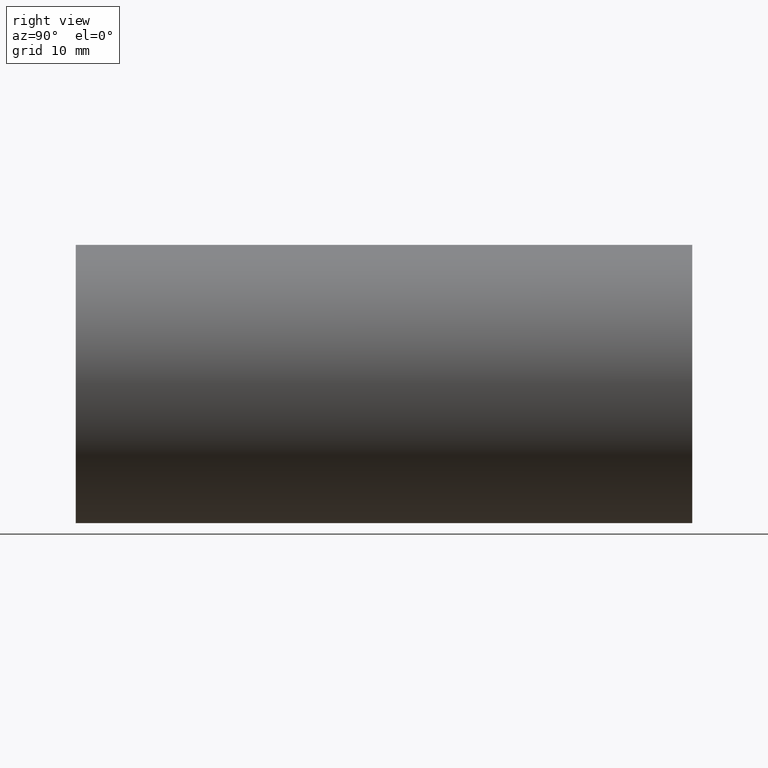
[diagram: clean part render]
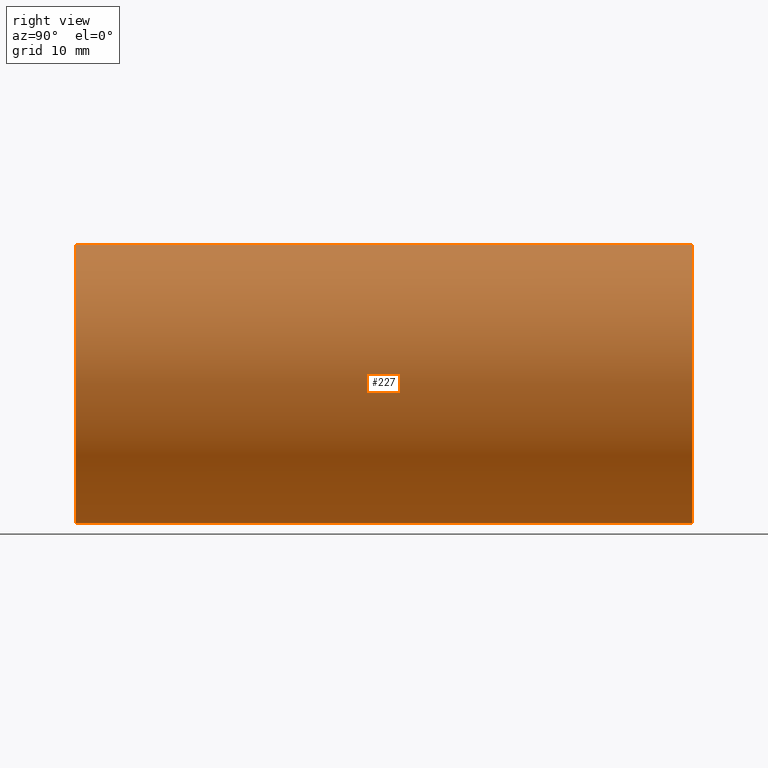
[diagram: same view with one face highlighted and labeled with its STEP entity id]
A machine part, right view. The second image highlights one B-rep face of the part: STEP entity #227.
In plain terms, the highlighted cylindrical surface (partial cylindrical patch) has radius 12.7 mm, axis along (-0, 1, -0).
Its self-contained STEP definition (entity closure, byte-faithful):
#12 = CARTESIAN_POINT ( 'NONE',  ( 0.0000000000000000000, 56.29999999999999000, 0.0000000000000000000 ) ) ;
#34 = CARTESIAN_POINT ( 'NONE',  ( 0.0000000000000000000, 56.29999999999999000, 12.70000000000001900 ) ) ;
#53 = LINE ( 'NONE', #59, #203 ) ;
#59 = CARTESIAN_POINT ( 'NONE',  ( 0.0000000000000000000, 161.3761669434274500, 12.70000000000001900 ) ) ;
#66 = AXIS2_PLACEMENT_3D ( 'NONE', #329, #278, #614 ) ;
#67 = DIRECTION ( 'NONE',  ( 0.0000000000000000000, 0.0000000000000000000, 1.000000000000000000 ) ) ;
#80 = ORIENTED_EDGE ( 'NONE', *, *, #174, .T. ) ;
#116 = VECTOR ( 'NONE', #311, 1000.000000000000000 ) ;
#117 = DIRECTION ( 'NONE',  ( -0.0000000000000000000, 1.000000000000000000, -0.0000000000000000000 ) ) ;
#174 = EDGE_CURVE ( 'NONE', #519, #330, #369, .T. ) ;
#177 = CARTESIAN_POINT ( 'NONE',  ( 1.555301434917140800E-015, 56.29999999999999000, -12.70000000000001900 ) ) ;
#203 = VECTOR ( 'NONE', #204, 1000.000000000000000 ) ;
#204 = DIRECTION ( 'NONE',  ( -0.0000000000000000000, 1.000000000000000000, -0.0000000000000000000 ) ) ;
#206 = ORIENTED_EDGE ( 'NONE', *, *, #335, .F. ) ;
#211 = CARTESIAN_POINT ( 'NONE',  ( 0.0000000000000000000, -2.775557561562891400E-014, 12.70000000000001900 ) ) ;
#227 = ADVANCED_FACE ( 'NONE', ( #483 ), #583, .T. ) ;
#247 = ORIENTED_EDGE ( 'NONE', *, *, #562, .T. ) ;
#248 = VERTEX_POINT ( 'NONE', #177 ) ;
#278 = DIRECTION ( 'NONE',  ( -0.0000000000000000000, 1.000000000000000000, -0.0000000000000000000 ) ) ;
#282 = EDGE_LOOP ( 'NONE', ( #80, #247, #206, #337 ) ) ;
#286 = VERTEX_POINT ( 'NONE', #34 ) ;
#293 = AXIS2_PLACEMENT_3D ( 'NONE', #12, #117, #397 ) ;
#311 = DIRECTION ( 'NONE',  ( -0.0000000000000000000, 1.000000000000000000, -0.0000000000000000000 ) ) ;
#314 = DIRECTION ( 'NONE',  ( -0.0000000000000000000, 1.000000000000000000, -0.0000000000000000000 ) ) ;
#329 = CARTESIAN_POINT ( 'NONE',  ( 0.0000000000000000000, 161.3761669434274500, 0.0000000000000000000 ) ) ;
#330 = VERTEX_POINT ( 'NONE', #487 ) ;
#335 = EDGE_CURVE ( 'NONE', #286, #248, #441, .T. ) ;
#337 = ORIENTED_EDGE ( 'NONE', *, *, #379, .F. ) ;
#369 = CIRCLE ( 'NONE', #624, 12.70000000000001900 ) ;
#379 = EDGE_CURVE ( 'NONE', #519, #286, #53, .T. ) ;
#397 = DIRECTION ( 'NONE',  ( 0.0000000000000000000, 0.0000000000000000000, 1.000000000000000000 ) ) ;
#441 = CIRCLE ( 'NONE', #293, 12.70000000000001900 ) ;
#483 = FACE_OUTER_BOUND ( 'NONE', #282, .T. ) ;
#487 = CARTESIAN_POINT ( 'NONE',  ( 1.555301434917140800E-015, -2.775557561562891400E-014, -12.70000000000001900 ) ) ;
#519 = VERTEX_POINT ( 'NONE', #211 ) ;
#529 = LINE ( 'NONE', #597, #116 ) ;
#562 = EDGE_CURVE ( 'NONE', #330, #248, #529, .T. ) ;
#583 = CYLINDRICAL_SURFACE ( 'NONE', #66, 12.70000000000001900 ) ;
#597 = CARTESIAN_POINT ( 'NONE',  ( 1.555301434917140800E-015, 161.3761669434274500, -12.70000000000001900 ) ) ;
#601 = CARTESIAN_POINT ( 'NONE',  ( 0.0000000000000000000, -2.775557561562891400E-014, 0.0000000000000000000 ) ) ;
#614 = DIRECTION ( 'NONE',  ( 0.0000000000000000000, 0.0000000000000000000, 1.000000000000000000 ) ) ;
#624 = AXIS2_PLACEMENT_3D ( 'NONE', #601, #314, #67 ) ;